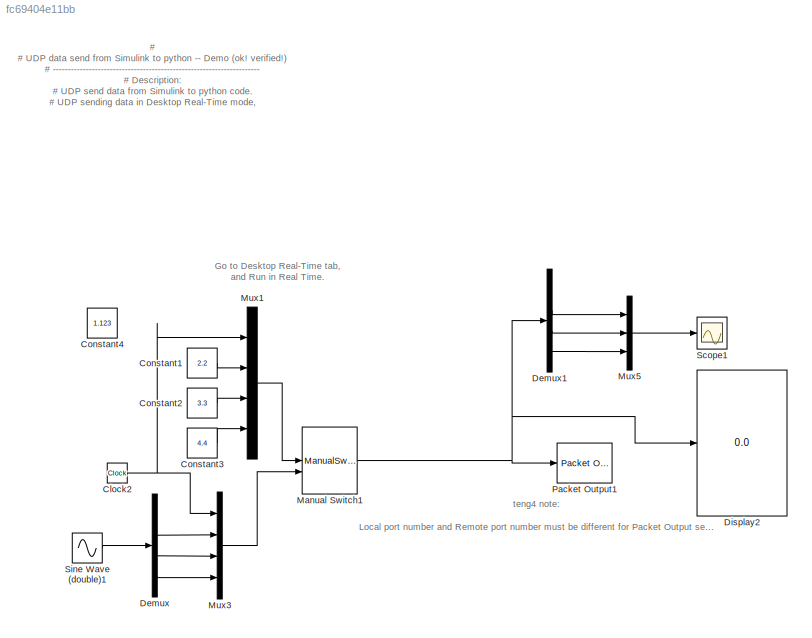
MODEL slx_fc69404e11bb
KIND model
CONFIG AbsTol = auto
CONFIG EnableMultiTasking = on
CONFIG FixedStep = auto
CONFIG MaxStep = auto
CONFIG MinStep = auto
CONFIG RelTol = 1e-3
CONFIG SampleTimeConstraint = Unconstrained
CONFIG Solver = ode45
CONFIG SolverName = ode45
CONFIG StartTime = 0.0
CONFIG StopTime = 10.0
BLOCK [Clock] Clock2
BLOCK [Constant] Constant1
  Value = 2.2
BLOCK [Constant] Constant2
  Value = 3.3
BLOCK [Constant] Constant3
  Value = 4.4
BLOCK [Constant] Constant4
  Value = 1.123
BLOCK [Demux] Demux
  Ports = [1, 4]
BLOCK [Demux] Demux1
  Ports = [1, 4]
BLOCK [Display] Display2
  Decimation = 1
  Ports = [1]
BLOCK [ManualSwitch] Manual Switch1
  CurrentSetting = 0
BLOCK [Mux] Mux1
  DisplayOption = bar
  Ports = [4, 1]
BLOCK [Mux] Mux3
  DisplayOption = bar
  Ports = [4, 1]
BLOCK [Mux] Mux5
  DisplayOption = bar
  Inputs = 3
  Ports = [3, 1]
BLOCK [Reference] Packet Output1  REF=sldrtlib/Packet Output
  AttributesFormatString = UDP Protocol [24000]
  Ports = [1]
  SourceBlock = sldrtlib/Packet Output
  SourceProductBaseCode = WT
  SourceType = Simulink Desktop Real-Time Packet Output
BLOCK [Scope] Scope1
  Floating = off
  NumInputPorts = 1
  Ports = [1]
  ScopeSpecificationString = Simulink.scopes.TimeScopeBlockCfg('CurrentConfiguration', extmgr.ConfigurationSet(extmgr.Configuration('Core','General UI',true),extmgr.Configuration('Core','Source UI',true),extmgr.Configuration('Sources','WiredSimulink',true,'DataLoggingVariableName','ScopeData2'),extmgr.Configuration('Visuals','Time Domain',true,'SerializedDisplays',{struct('MinYLimReal','-4.99991','MaxYLimReal','4.9996','YLabe...<+1443ch>
BLOCK [Sin] Sine Wave (double)1
  Amplitude = 1:4
  Frequency = 2
  Ports = [0, 1]
  SampleTime = 0
ANNOTATION (root): teng4 note: Local port number and Remote port number must be different for Packet Output setting. otherwise, the UDP Protocal block cannot be setup.
ANNOTATION (root): Go to Desktop Real-Time tab, and Run in Real Time.
ANNOTATION (root): # # UDP data send from Simulink to python -- Demo (ok! verified!) # --------------------------------------------------------------------- # Description: # UDP send data from Simulink to python code. # UDP sending data in Desktop Real-Time mode, # (not exactly real-time, but close to.) # --------------------------------------------------------------------- # teng4 modified, 2023-02-23, Thursday. # ...<+35ch>
NET Clock2:1 -> Mux1:1, Mux3:1
LINE Constant1:1 -> Mux1:2
LINE Constant2:1 -> Mux1:3
LINE Constant3:1 -> Mux1:4
LINE Demux1:2 -> Mux5:1
LINE Demux1:3 -> Mux5:2
LINE Demux1:4 -> Mux5:3
LINE Demux:2 -> Mux3:2
LINE Demux:3 -> Mux3:3
LINE Demux:4 -> Mux3:4
NET Manual Switch1:1 -> Demux1:1, Display2:1, Packet Output1:1
LINE Mux1:1 -> Manual Switch1:1
LINE Mux3:1 -> Manual Switch1:2
LINE Mux5:1 -> Scope1:1
LINE Sine Wave (double)1:1 -> Demux:1
note: NET lines group one-source signal fan-out (src -> all destinations, sorted); 1:1 wires keep LINE
